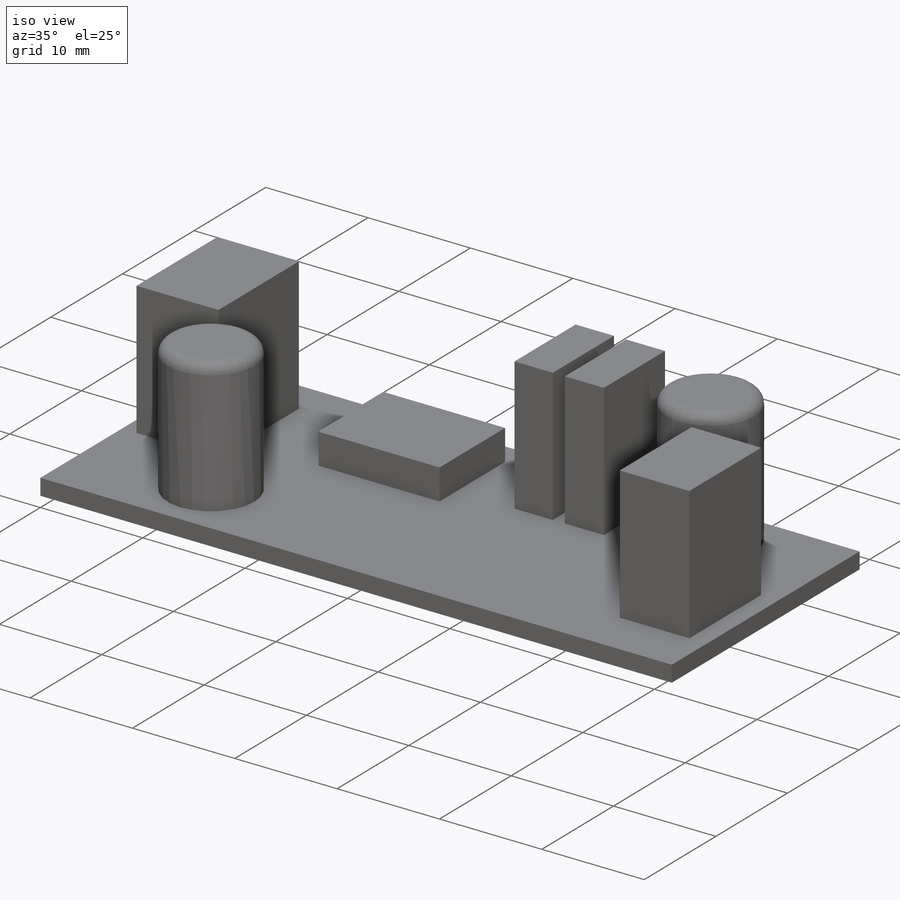
[diagram: iso view]
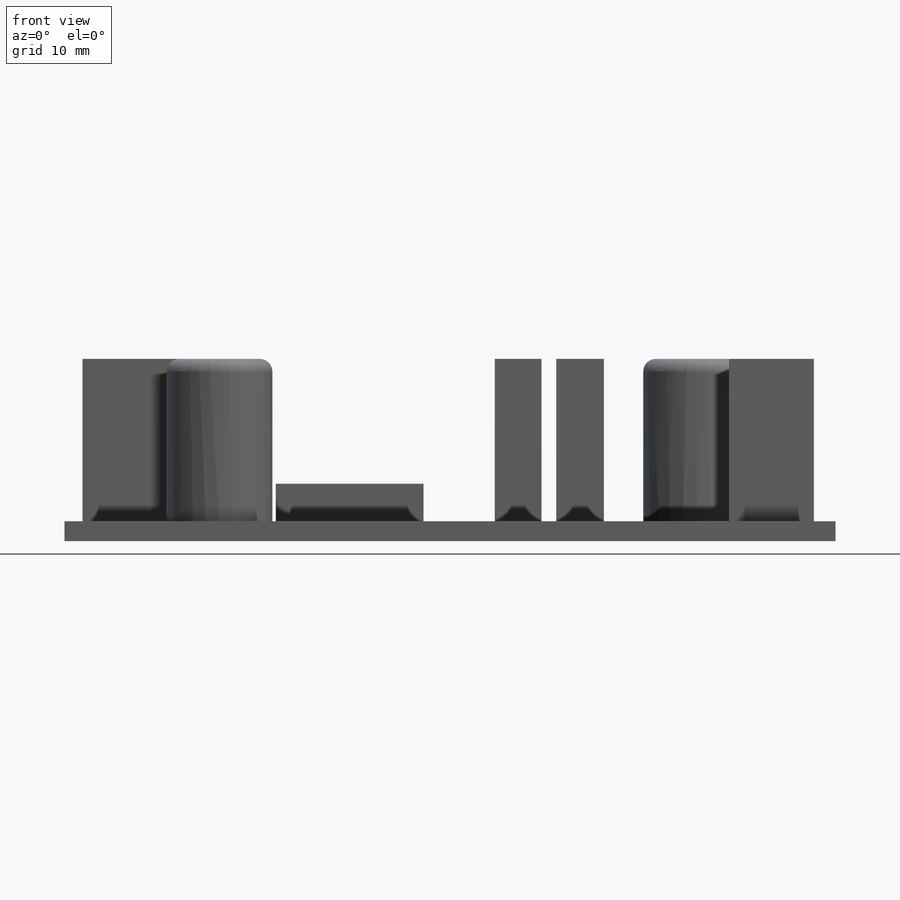
[diagram: front view]
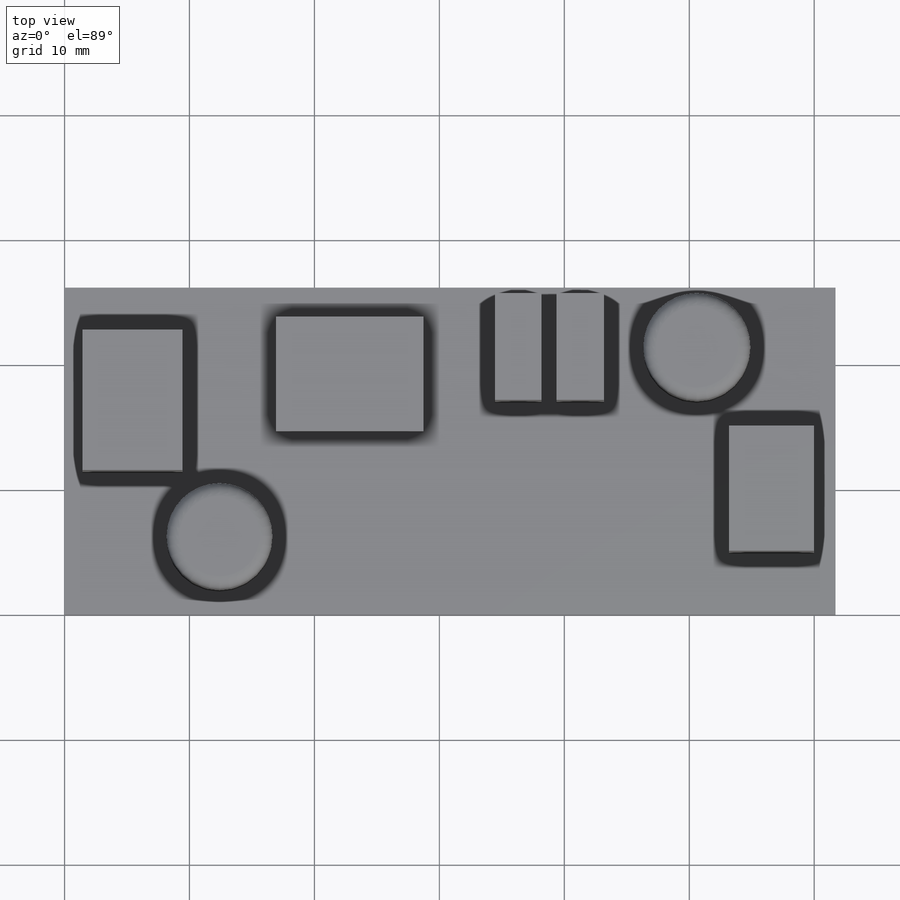
[diagram: top view]
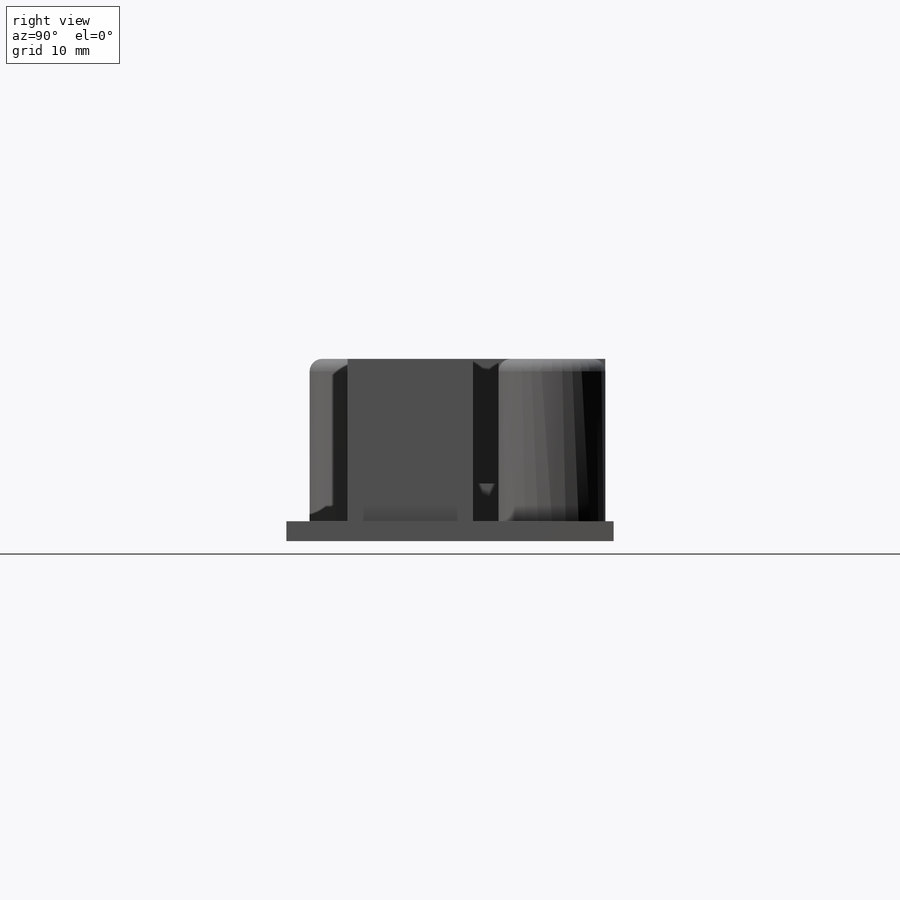
[diagram: right view]
SOLIDWORKS PART (.sldprt)
format: sldprt  version: not decoded by parser v0  size: 208,896 bytes
history: native  units: mm
features: sketch x3, extrude x3, material x1, fillet x1 (+13 scaffold rows collapsed)
feature tree (21):
  scaffold x13  (default folders/planes/origin — collapsed)
  material  "Material <not specified>"
  sketch  "Sketch1"  dims[c1.D1=26.2mm c1.D2=61.7mm c2.D1=26.2mm c2.D2=61.7mm]
  extrude  "Boss-Extrude1"  Depth=1.59mm
  sketch  "Sketch2"  dims[c1.D1=~11.23163mm c1.D2=~7.996291mm c2.D1=~10.015434mm c2.D2=~6.797404mm c3.D1=~8.537741mm c3.D2=~3.744476mm c4.D1=~8.537741mm c4.D2=~3.804794mm]
  extrude  "Boss-Extrude2"  Depth=13mm
  fillet  "Fillet1"  Radius=1mm
  sketch  "Sketch3"  dims[D1=~9.149411mm D2=~11.824805mm]
  extrude  "Boss-Extrude3"  Depth=3mm
decode coverage: 7 of 7 modeling features carry decoded parameters
note: ~ marks probable driven/reference dimensions
note: suppression state not decoded; provenance and decode notes live in map.json
